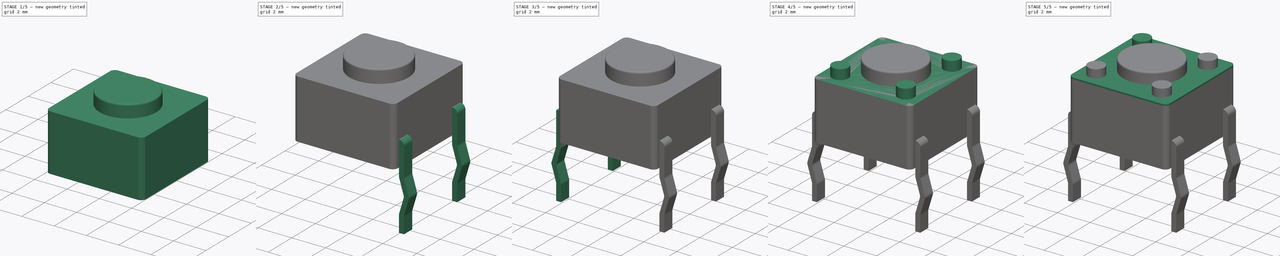
[diagram: build sequence overview — one tinted view per stage of 5, left to right]
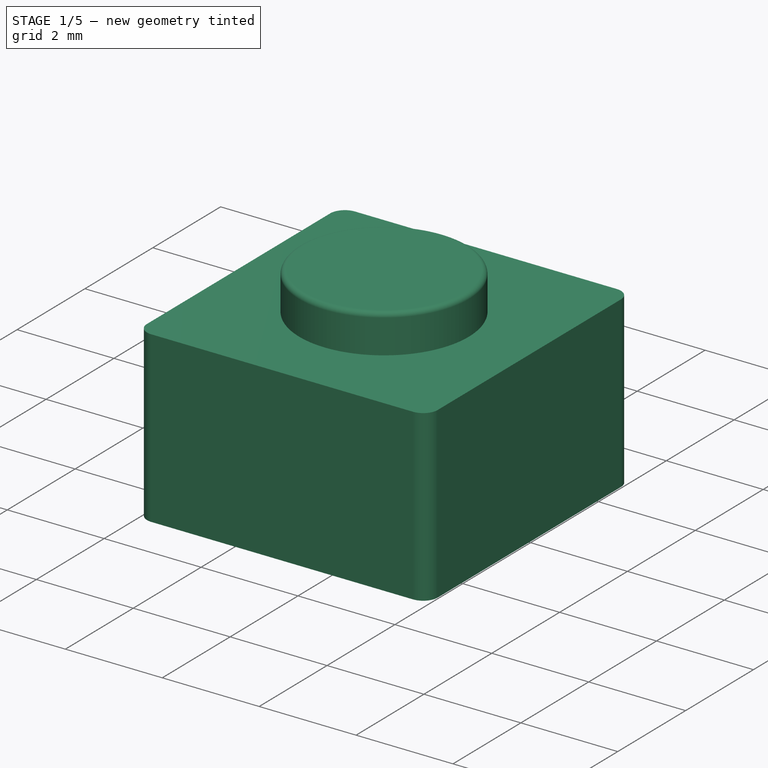
[diagram: stage 1 of 5 — iso view after this stage's code; geometry added in this stage tinted green]
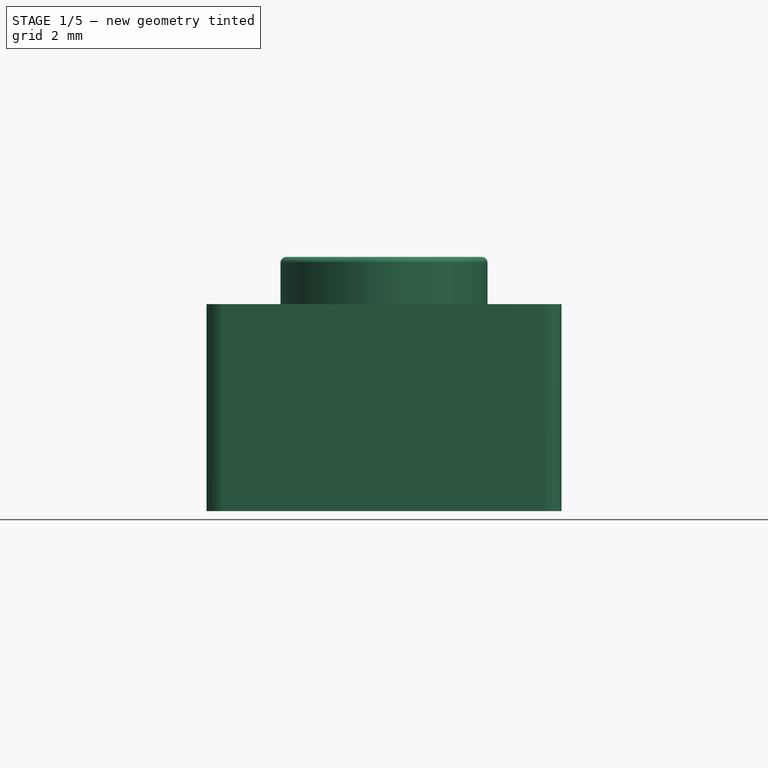
[diagram: stage 1 of 5 — front view after this stage's code; geometry added in this stage tinted green]
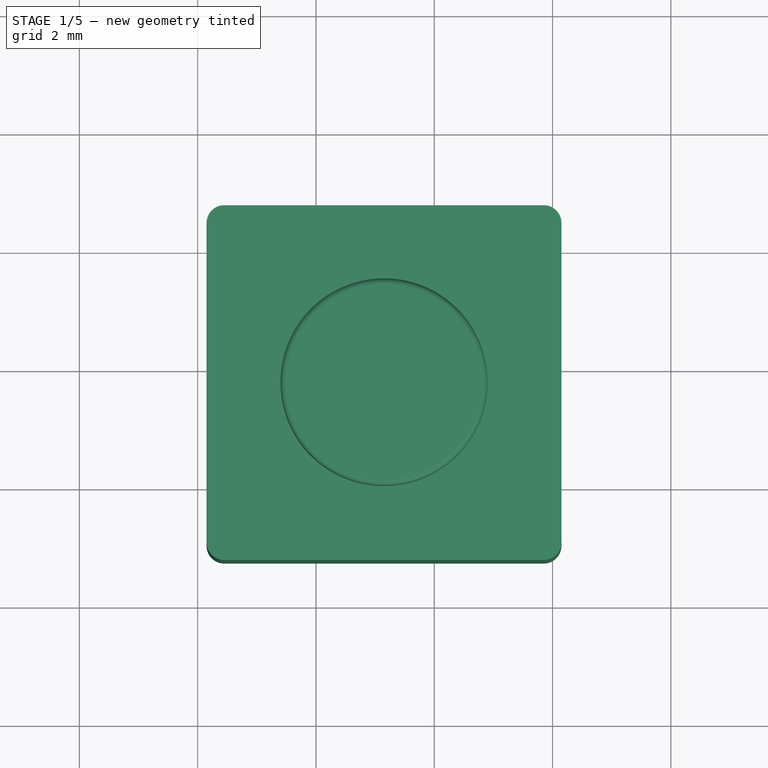
[diagram: stage 1 of 5 — top view after this stage's code; geometry added in this stage tinted green]
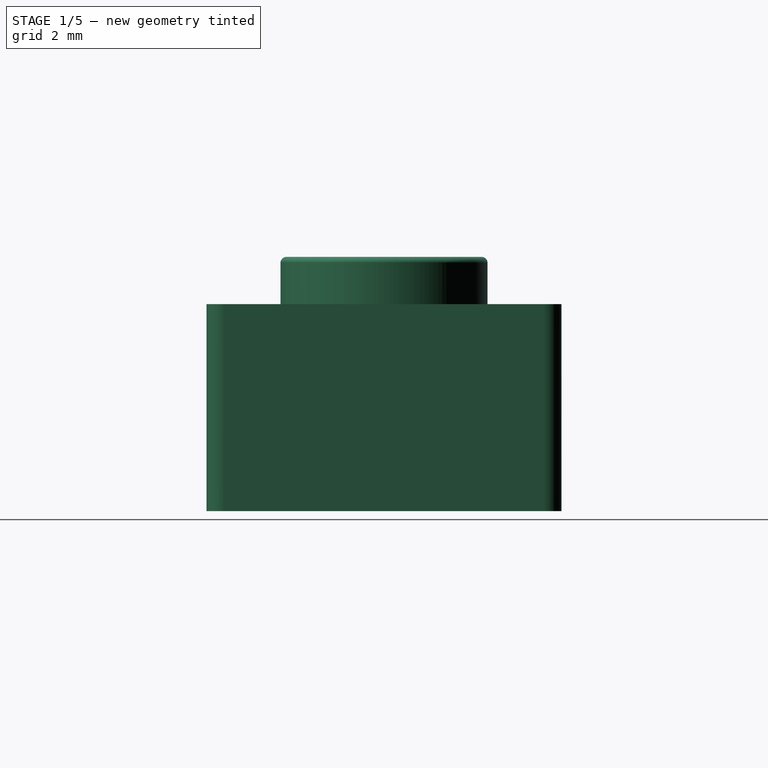
[diagram: stage 1 of 5 — right view after this stage's code; geometry added in this stage tinted green]
FCSTD DOCUMENT  (FreeCAD 0.16R6712 (Git))
Label: SW_PUSH_6mm_h4.3mm
License: All rights reserved
LicenseURL: http://en.wikipedia.org/wiki/All_rights_reserved
objects: Sketcher::SketchObject×11, PartDesign::Pad×11, PartDesign::Fillet×7, App::DocumentObjectGroup×3, Spreadsheet::Sheet×1, Part::MultiFuse×1
note: 41 computed .brp shape members not serialized (recipe doc carries the construction recipe); baked Part::Feature solids carry a one-line shape summary decoded from their .brp

FEATURE [Sketcher::SketchObject] Sketch
  expr: Constraints[10] = -1 * (6 - 4.5) / 2 - 4.5
  sketch-geometry (4):
    g0: LineSegment StartX=0.15 StartY=-5.25 StartZ=0 EndX=6.15 EndY=-5.25 EndZ=0
    g1: LineSegment StartX=6.15 StartY=-5.25 StartZ=0 EndX=6.15 EndY=0.75 EndZ=0
    g2: LineSegment StartX=6.15 StartY=0.75 StartZ=0 EndX=0.15 EndY=0.75 EndZ=0
    g3: LineSegment StartX=0.15 StartY=0.75 StartZ=0 EndX=0.15 EndY=-5.25 EndZ=0
  constraints (12):
    c: Coincident(g0,g1)
    c: Coincident(g1,g2)
    c: Coincident(g2,g3)
    c: Coincident(g3,g0)
    c: Horizontal(g0)
    c: Horizontal(g2)
    c: Vertical(g1)
    c: Vertical(g3)
    c: DistanceX(g2,g2) = 6
    c: DistanceY(g1,g1) = 6
    c: DistanceY(g-1,g0) = -5.25
    c: DistanceX(g-1,g0) = 0.15
FEATURE [PartDesign::Pad] Pad
  Length = 3.5
  Length2 = 100
  Sketch = -> Sketch
  Type = 0
FEATURE [PartDesign::Fillet] Fillet
  Base = -> Pad [Edge5,Edge2,Edge1,Edge8]
  Radius = 0.3
FEATURE [Sketcher::SketchObject] Sketch006
  ExternalGeometry = -> [Fillet]
  Placement = pos=(0,0,3.5) rot=(0,0,1;0rad)
  Support = -> Fillet [Face5]
  expr: Constraints[0] = 3.5 / 2
  sketch-geometry (1):
    g0: Circle CenterX=3.15 CenterY=-2.25 CenterZ=0 NormalX=0 NormalY=0 NormalZ=1 Radius=1.75
  constraints (3):
    c: Radius(g0) = 1.75
    c: DistanceX(g-3,g0) = 3
    c: DistanceY(g0,g-6) = 3
FEATURE [PartDesign::Pad] Pad006
  Length = 0.8
  Length2 = 100
  Sketch = -> Sketch006
  Type = 0
  expr: Length = dim.height - 3.5
FEATURE [PartDesign::Fillet] Fillet006
  Base = -> Pad006 [Edge1]
  Radius = 0.1
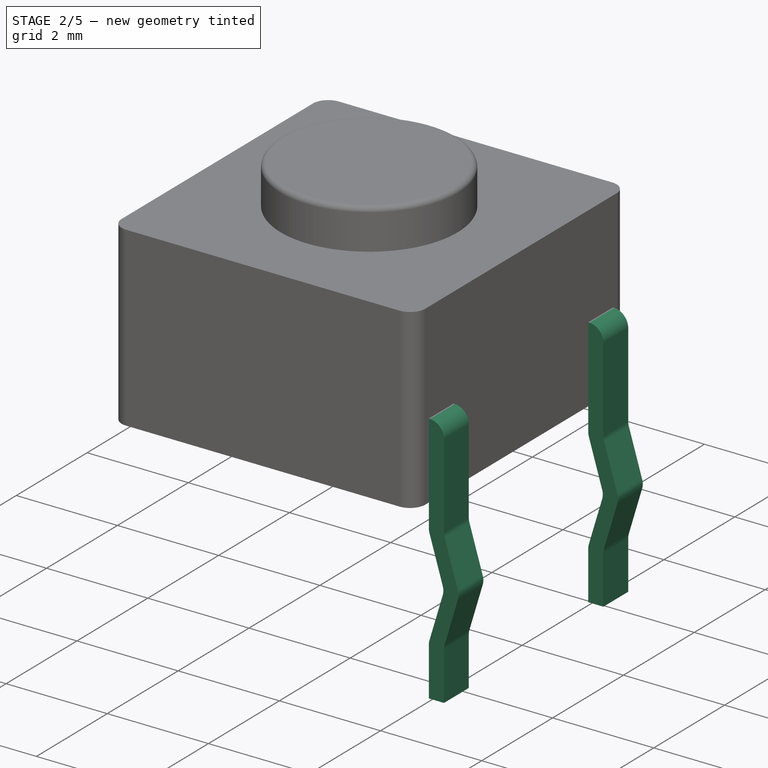
[diagram: stage 2 of 5 — iso view after this stage's code; geometry added in this stage tinted green]
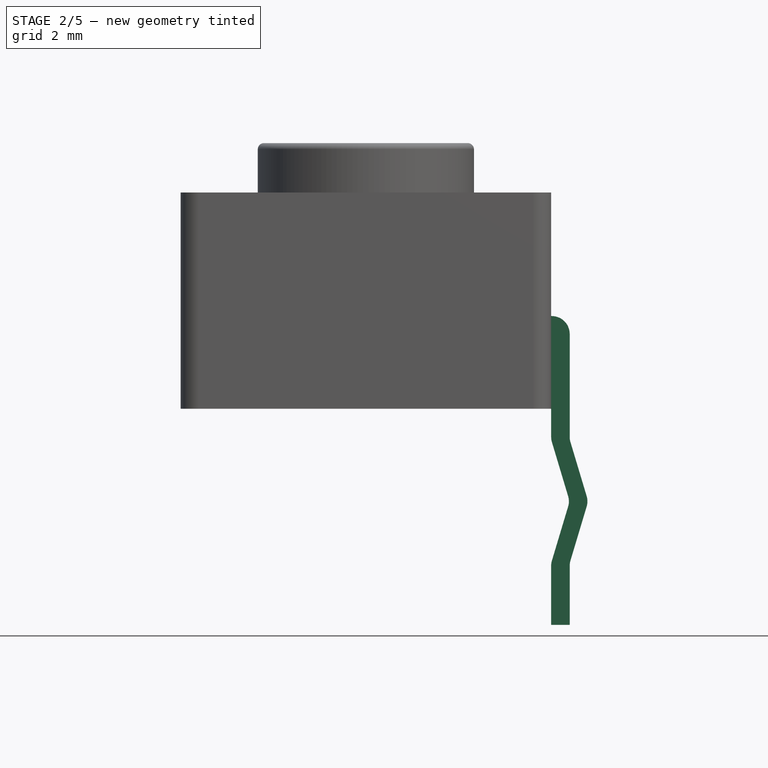
[diagram: stage 2 of 5 — front view after this stage's code; geometry added in this stage tinted green]
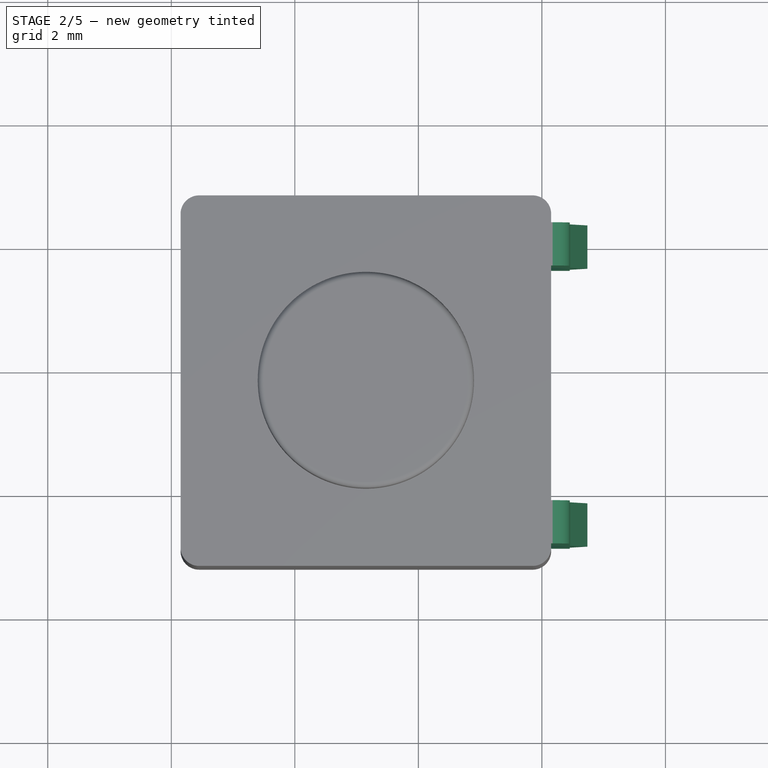
[diagram: stage 2 of 5 — top view after this stage's code; geometry added in this stage tinted green]
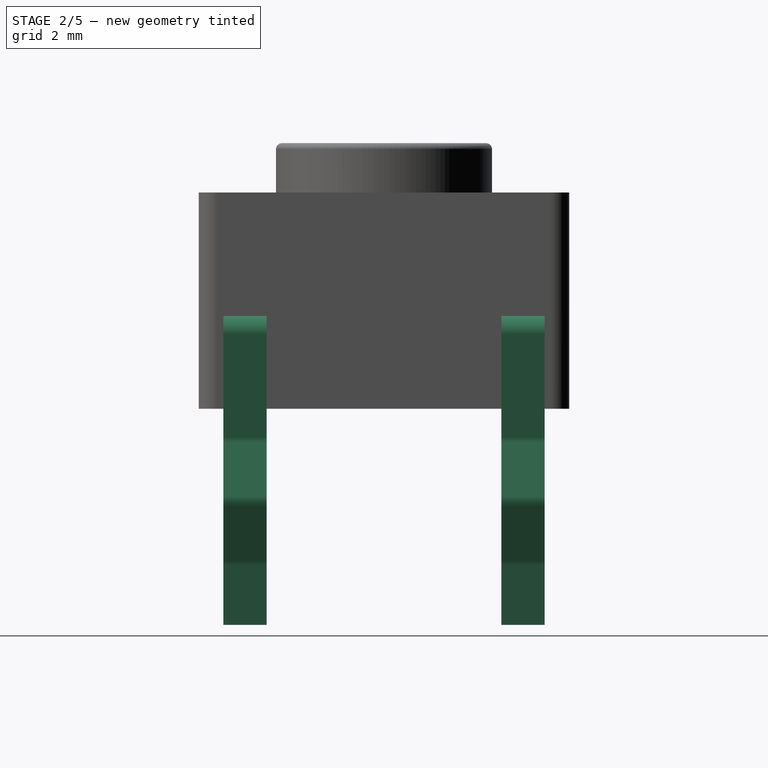
[diagram: stage 2 of 5 — right view after this stage's code; geometry added in this stage tinted green]
FEATURE [Sketcher::SketchObject] Sketch009
  Placement = pos=(0,-4.85,0) rot=(1,0,0;1.5708rad)
  expr: Placement.Base.y = -0.7 / 2 - 4.5
  sketch-geometry (10):
    g0: LineSegment StartX=6.45 StartY=1.5 StartZ=0 EndX=6.15 EndY=1.5 EndZ=0
    g1: LineSegment StartX=6.15 StartY=1.5 StartZ=0 EndX=6.15 EndY=-0.5 EndZ=0
    g2: LineSegment StartX=6.45 StartY=-0.5 StartZ=0 EndX=6.45 EndY=1.5 EndZ=0
    g3: LineSegment StartX=6.15 StartY=-2.5 StartZ=0 EndX=6.15 EndY=-3.5 EndZ=0
    g4: LineSegment StartX=6.15 StartY=-3.5 StartZ=0 EndX=6.45 EndY=-3.5 EndZ=0
    g5: LineSegment StartX=6.45 StartY=-3.5 StartZ=0 EndX=6.45 EndY=-2.5 EndZ=0
    g6: LineSegment StartX=6.45 StartY=-0.5 StartZ=0 EndX=6.75 EndY=-1.5 EndZ=0
    g7: LineSegment StartX=6.75 StartY=-1.5 StartZ=0 EndX=6.45 EndY=-2.5 EndZ=0
    g8: LineSegment StartX=6.15 StartY=-2.5 StartZ=0 EndX=6.45 EndY=-1.5 EndZ=0
    g9: LineSegment StartX=6.45 StartY=-1.5 StartZ=0 EndX=6.15 EndY=-0.5 EndZ=0
  constraints (30):
    c: Coincident(g0,g1)
    c: Coincident(g2,g0)
    c: Horizontal(g0)
    c: Vertical(g1)
    c: Vertical(g2)
    c: Coincident(g3,g4)
    c: Coincident(g4,g5)
    c: Horizontal(g4)
    c: Vertical(g3)
    c: Vertical(g5)
    c: DistanceX(g4,g4) = -0.3
    c: DistanceX(g2,g1) = -0.3
    c: DistanceX(g-1,g1) = 6.15
    c: DistanceX(g1,g3) = 0
    c: Coincident(g6,g2)
    c: Coincident(g7,g6)
    c: Coincident(g7,g5)
    c: Coincident(g8,g3)
    c: Coincident(g9,g8)
    c: Coincident(g9,g1)
    c: DistanceX(g6,g8) = -0.3
    c: DistanceY(g8,g6) = 0
    c: DistanceY(g8,g1) = 1
    c: DistanceY(g2,g1) = 0
    c: DistanceY(g5,g3) = 0
    c: DistanceY(g5,g6) = 1
    c: DistanceY(g3,g3) = 1
    c: DistanceY(g1,g-1) = 0.5
    c: DistanceX(g6,g3) = -0.6
    c: DistanceY(g2,g2) = 2
FEATURE [PartDesign::Pad] Pad009
  Length = 0.7
  Length2 = 100
  Placement = pos=(0,-4.85,0) rot=(1,0,0;1.5708rad)
  Reversed = true
  Sketch = -> Sketch009
  Type = 0
FEATURE [PartDesign::Fillet] Fillet004
  Base = -> Pad009 [Edge26,Edge1,Edge2,Edge5,Edge11,Edge14,Edge17]
  Placement = pos=(0,-4.85,0) rot=(1,0,0;1.5708rad)
  Radius = 0.29
FEATURE [Sketcher::SketchObject] Sketch010
  Placement = pos=(0,-0.35,0) rot=(1,0,0;1.5708rad)
  expr: Placement.Base.y = 4.5 - 0.7 / 2 - 4.5
  sketch-geometry (10):
    g0: LineSegment StartX=6.45 StartY=1.5 StartZ=0 EndX=6.15 EndY=1.5 EndZ=0
    g1: LineSegment StartX=6.15 StartY=1.5 StartZ=0 EndX=6.15 EndY=-0.5 EndZ=0
    g2: LineSegment StartX=6.45 StartY=-0.5 StartZ=0 EndX=6.45 EndY=1.5 EndZ=0
    g3: LineSegment StartX=6.15 StartY=-2.5 StartZ=0 EndX=6.15 EndY=-3.5 EndZ=0
    g4: LineSegment StartX=6.15 StartY=-3.5 StartZ=0 EndX=6.45 EndY=-3.5 EndZ=0
    g5: LineSegment StartX=6.45 StartY=-3.5 StartZ=0 EndX=6.45 EndY=-2.5 EndZ=0
    g6: LineSegment StartX=6.45 StartY=-0.5 StartZ=0 EndX=6.75 EndY=-1.5 EndZ=0
    g7: LineSegment StartX=6.75 StartY=-1.5 StartZ=0 EndX=6.45 EndY=-2.5 EndZ=0
    g8: LineSegment StartX=6.15 StartY=-2.5 StartZ=0 EndX=6.45 EndY=-1.5 EndZ=0
    g9: LineSegment StartX=6.45 StartY=-1.5 StartZ=0 EndX=6.15 EndY=-0.5 EndZ=0
  constraints (30):
    c: Coincident(g0,g1)
    c: Coincident(g2,g0)
    c: Horizontal(g0)
    c: Vertical(g1)
    c: Vertical(g2)
    c: Coincident(g3,g4)
    c: Coincident(g4,g5)
    c: Horizontal(g4)
    c: Vertical(g3)
    c: Vertical(g5)
    c: DistanceX(g4,g4) = -0.3
    c: DistanceX(g2,g1) = -0.3
    c: DistanceX(g-1,g1) = 6.15
    c: DistanceX(g1,g3) = 0
    c: Coincident(g6,g2)
    c: Coincident(g7,g6)
    c: Coincident(g7,g5)
    c: Coincident(g8,g3)
    c: Coincident(g9,g8)
    c: Coincident(g9,g1)
    c: DistanceX(g6,g8) = -0.3
    c: DistanceY(g8,g6) = 0
    c: DistanceY(g8,g1) = 1
    c: DistanceY(g2,g1) = 0
    c: DistanceY(g5,g3) = 0
    c: DistanceY(g5,g6) = 1
    c: DistanceY(g3,g3) = 1
    c: DistanceY(g1,g-1) = 0.5
    c: DistanceX(g6,g3) = -0.6
    c: DistanceY(g2,g2) = 2
FEATURE [PartDesign::Pad] Pad010
  Length = 0.7
  Length2 = 100
  Placement = pos=(0,-0.35,0) rot=(1,0,0;1.5708rad)
  Reversed = true
  Sketch = -> Sketch010
  Type = 0
FEATURE [PartDesign::Fillet] Fillet005
  Base = -> Pad010 [Edge26,Edge1,Edge2,Edge5,Edge11,Edge14,Edge17]
  Placement = pos=(0,-0.35,0) rot=(1,0,0;1.5708rad)
  Radius = 0.29
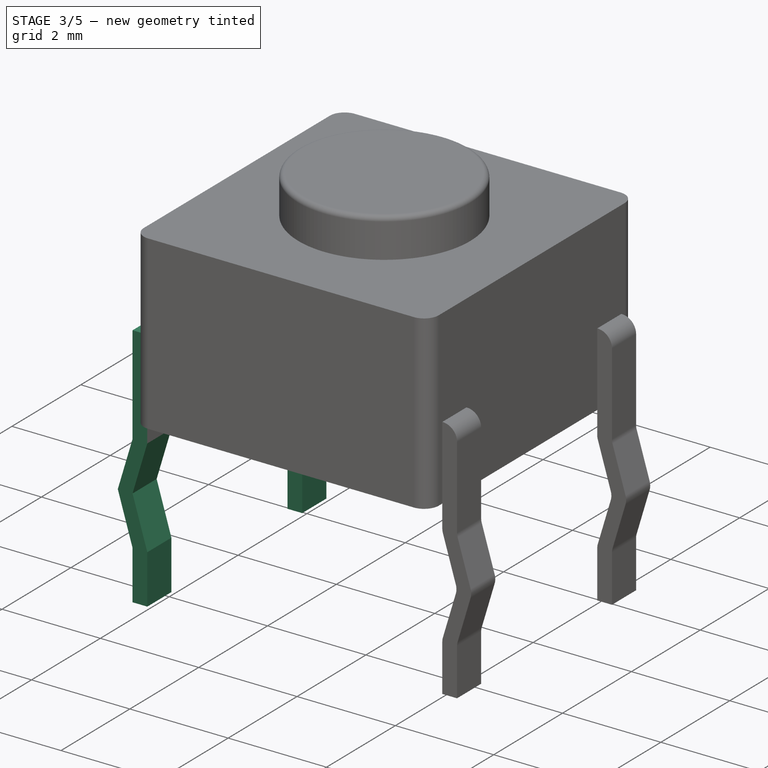
[diagram: stage 3 of 5 — iso view after this stage's code; geometry added in this stage tinted green]
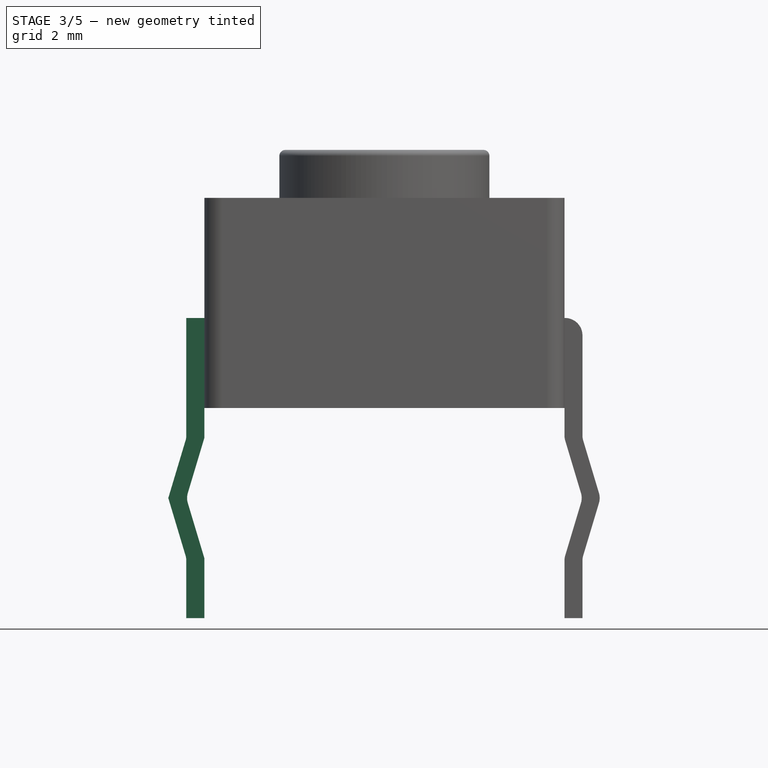
[diagram: stage 3 of 5 — front view after this stage's code; geometry added in this stage tinted green]
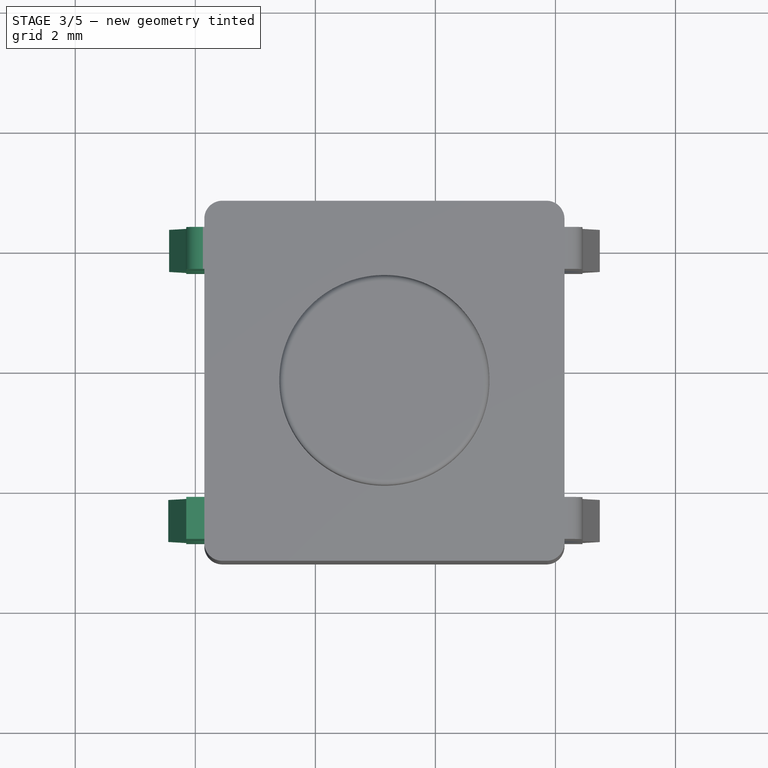
[diagram: stage 3 of 5 — top view after this stage's code; geometry added in this stage tinted green]
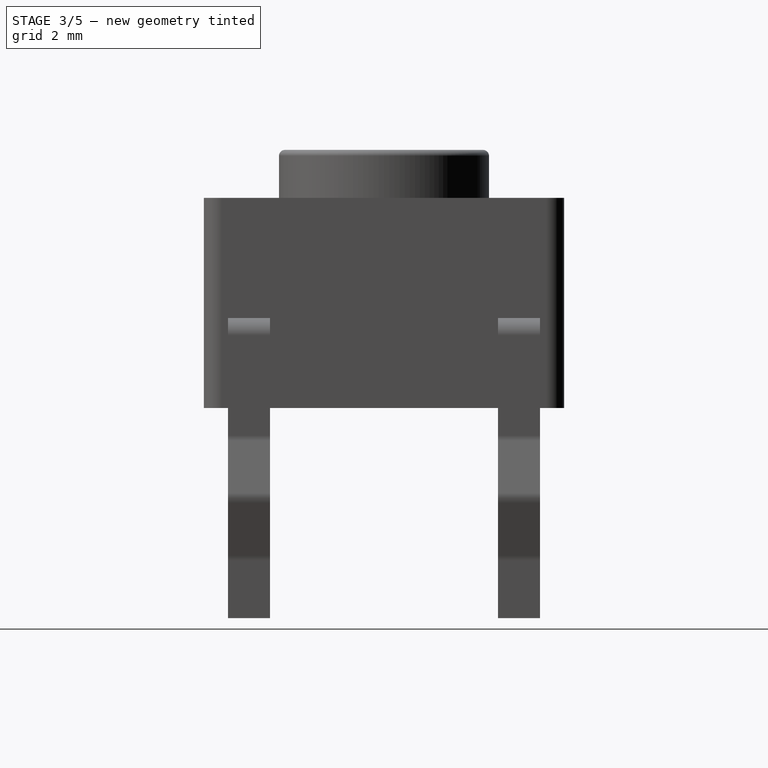
[diagram: stage 3 of 5 — right view after this stage's code; geometry added in this stage tinted green]
FEATURE [Sketcher::SketchObject] Sketch007
  Placement = pos=(0,-4.85,0) rot=(1,0,0;1.5708rad)
  expr: Placement.Base.y = -0.7 / 2 - 4.5
  sketch-geometry (10):
    g0: LineSegment StartX=-0.15 StartY=1.5 StartZ=0 EndX=0.15 EndY=1.5 EndZ=0
    g1: LineSegment StartX=0.15 StartY=1.5 StartZ=0 EndX=0.15 EndY=-0.5 EndZ=0
    g2: LineSegment StartX=-0.15 StartY=-0.5 StartZ=0 EndX=-0.15 EndY=1.5 EndZ=0
    g3: LineSegment StartX=0.15 StartY=-2.5 StartZ=0 EndX=0.15 EndY=-3.5 EndZ=0
    g4: LineSegment StartX=0.15 StartY=-3.5 StartZ=0 EndX=-0.15 EndY=-3.5 EndZ=0
    g5: LineSegment StartX=-0.15 StartY=-3.5 StartZ=0 EndX=-0.15 EndY=-2.5 EndZ=0
    g6: LineSegment StartX=-0.15 StartY=-0.5 StartZ=0 EndX=-0.45 EndY=-1.5 EndZ=0
    g7: LineSegment StartX=-0.45 StartY=-1.5 StartZ=0 EndX=-0.15 EndY=-2.5 EndZ=0
    g8: LineSegment StartX=0.15 StartY=-2.5 StartZ=0 EndX=-0.15 EndY=-1.5 EndZ=0
    g9: LineSegment StartX=-0.15 StartY=-1.5 StartZ=0 EndX=0.15 EndY=-0.5 EndZ=0
  constraints (30):
    c: Coincident(g0,g1)
    c: Coincident(g2,g0)
    c: Horizontal(g0)
    c: Vertical(g1)
    c: Vertical(g2)
    c: Coincident(g3,g4)
    c: Coincident(g4,g5)
    c: Horizontal(g4)
    c: Vertical(g3)
    c: Vertical(g5)
    c: DistanceX(g4,g4) = 0.3
    c: DistanceX(g2,g1) = 0.3
    c: DistanceX(g-1,g1) = 0.15
    c: DistanceX(g1,g3) = 0
    c: Coincident(g6,g2)
    c: Coincident(g7,g6)
    c: Coincident(g7,g5)
    c: Coincident(g8,g3)
    c: Coincident(g9,g8)
    c: Coincident(g9,g1)
    c: DistanceX(g6,g8) = 0.3
    c: DistanceY(g8,g6) = 0
    c: DistanceY(g8,g1) = 1
    c: DistanceY(g2,g1) = 0
    c: DistanceY(g5,g3) = 0
    c: DistanceY(g5,g6) = 1
    c: DistanceY(g3,g3) = 1
    c: DistanceY(g1,g-1) = 0.5
    c: DistanceX(g6,g3) = 0.6
    c: DistanceY(g2,g2) = 2
FEATURE [PartDesign::Pad] Pad007
  Length = 0.7
  Length2 = 100
  Placement = pos=(0,-4.85,0) rot=(1,0,0;1.5708rad)
  Reversed = true
  Sketch = -> Sketch007
  Type = 0
FEATURE [Sketcher::SketchObject] Sketch008
  Placement = pos=(0,-0.35,0) rot=(1,0,0;1.5708rad)
  expr: Placement.Base.y = 4.5 - 0.7 / 2 - 4.5
  sketch-geometry (10):
    g0: LineSegment StartX=-0.15 StartY=1.5 StartZ=0 EndX=0.15 EndY=1.5 EndZ=0
    g1: LineSegment StartX=0.15 StartY=1.5 StartZ=0 EndX=0.15 EndY=-0.5 EndZ=0
    g2: LineSegment StartX=-0.15 StartY=-0.5 StartZ=0 EndX=-0.15 EndY=1.5 EndZ=0
    g3: LineSegment StartX=0.15 StartY=-2.5 StartZ=0 EndX=0.15 EndY=-3.5 EndZ=0
    g4: LineSegment StartX=0.15 StartY=-3.5 StartZ=0 EndX=-0.15 EndY=-3.5 EndZ=0
    g5: LineSegment StartX=-0.15 StartY=-3.5 StartZ=0 EndX=-0.15 EndY=-2.5 EndZ=0
    g6: LineSegment StartX=-0.15 StartY=-0.5 StartZ=0 EndX=-0.45 EndY=-1.5 EndZ=0
    g7: LineSegment StartX=-0.45 StartY=-1.5 StartZ=0 EndX=-0.15 EndY=-2.5 EndZ=0
    g8: LineSegment StartX=0.15 StartY=-2.5 StartZ=0 EndX=-0.15 EndY=-1.5 EndZ=0
    g9: LineSegment StartX=-0.15 StartY=-1.5 StartZ=0 EndX=0.15 EndY=-0.5 EndZ=0
  constraints (30):
    c: Coincident(g0,g1)
    c: Coincident(g2,g0)
    c: Horizontal(g0)
    c: Vertical(g1)
    c: Vertical(g2)
    c: Coincident(g3,g4)
    c: Coincident(g4,g5)
    c: Horizontal(g4)
    c: Vertical(g3)
    c: Vertical(g5)
    c: DistanceX(g4,g4) = 0.3
    c: DistanceX(g2,g1) = 0.3
    c: DistanceX(g-1,g1) = 0.15
    c: DistanceX(g1,g3) = 0
    c: Coincident(g6,g2)
    c: Coincident(g7,g6)
    c: Coincident(g7,g5)
    c: Coincident(g8,g3)
    c: Coincident(g9,g8)
    c: Coincident(g9,g1)
    c: DistanceX(g6,g8) = 0.3
    c: DistanceY(g8,g6) = 0
    c: DistanceY(g8,g1) = 1
    c: DistanceY(g2,g1) = 0
    c: DistanceY(g5,g3) = 0
    c: DistanceY(g5,g6) = 1
    c: DistanceY(g3,g3) = 1
    c: DistanceY(g1,g-1) = 0.5
    c: DistanceX(g6,g3) = 0.6
    c: DistanceY(g2,g2) = 2
FEATURE [PartDesign::Pad] Pad008
  Length = 0.7
  Length2 = 100
  Placement = pos=(0,-0.35,0) rot=(1,0,0;1.5708rad)
  Reversed = true
  Sketch = -> Sketch008
  Type = 0
FEATURE [PartDesign::Fillet] Fillet003
  Base = -> Pad008 [Edge26,Edge1,Edge2,Edge5,Edge11,Edge14,Edge17]
  Placement = pos=(0,-0.35,0) rot=(1,0,0;1.5708rad)
  Radius = 0.29
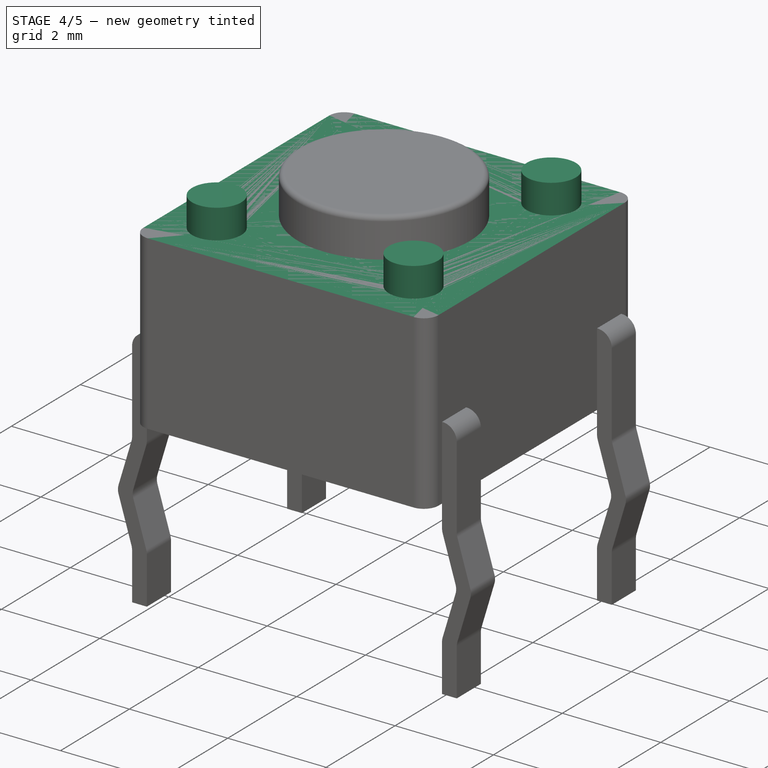
[diagram: stage 4 of 5 — iso view after this stage's code; geometry added in this stage tinted green]
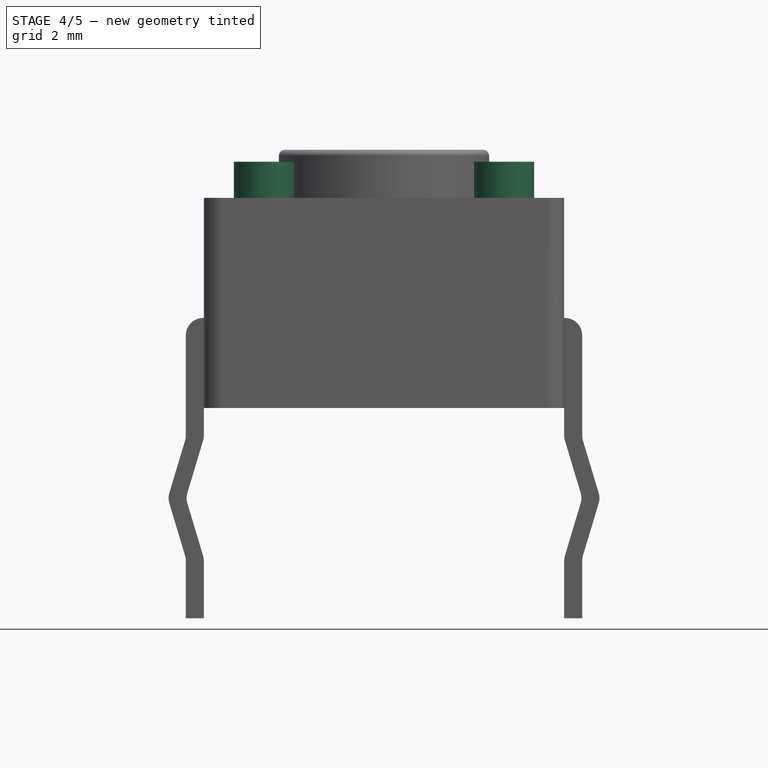
[diagram: stage 4 of 5 — front view after this stage's code; geometry added in this stage tinted green]
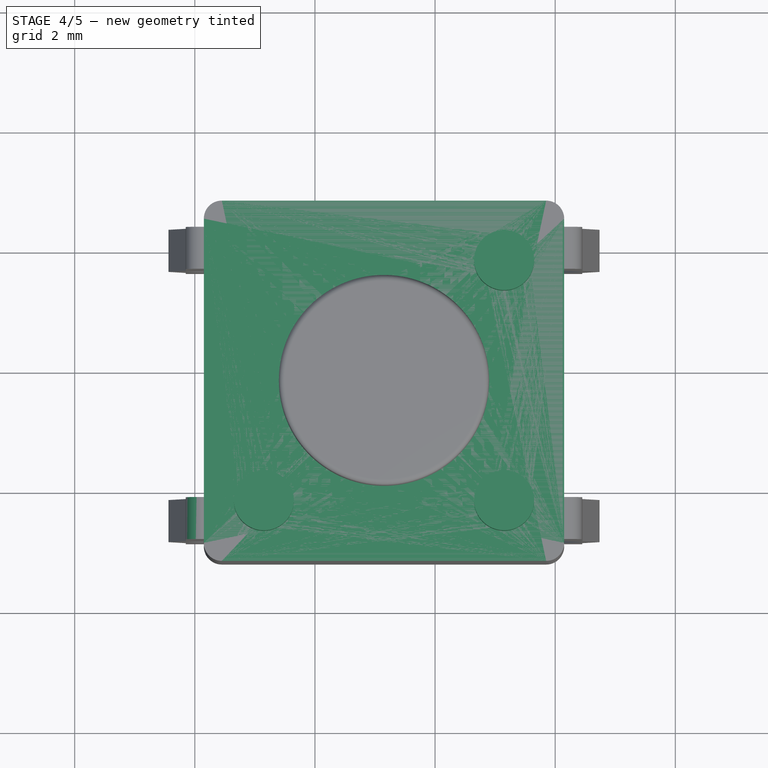
[diagram: stage 4 of 5 — top view after this stage's code; geometry added in this stage tinted green]
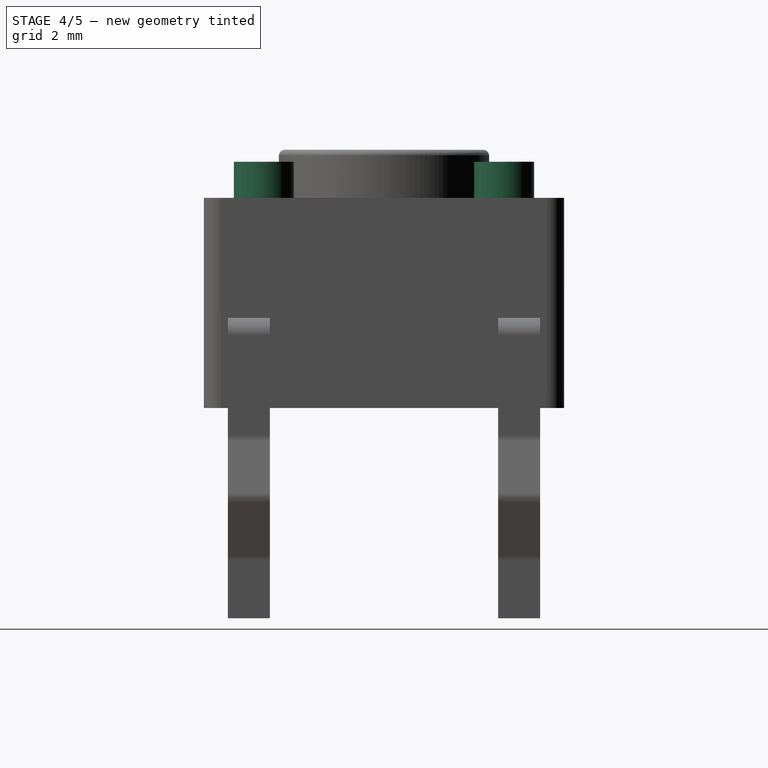
[diagram: stage 4 of 5 — right view after this stage's code; geometry added in this stage tinted green]
FEATURE [PartDesign::Pad] Pad003
  Length = 0.6
  Length2 = 100
  Sketch = -> Sketch004
  Type = 0
FEATURE [PartDesign::Pad] Pad004
  Length = 0.6
  Length2 = 100
  Sketch = -> Sketch003
  Type = 0
FEATURE [PartDesign::Pad] Pad005
  Length = 0.6
  Length2 = 100
  Sketch = -> Sketch002
  Type = 0
FEATURE [PartDesign::Fillet] Fillet002
  Base = -> Pad007 [Edge26,Edge1,Edge2,Edge5,Edge11,Edge14,Edge17]
  Placement = pos=(0,-4.85,0) rot=(1,0,0;1.5708rad)
  Radius = 0.29
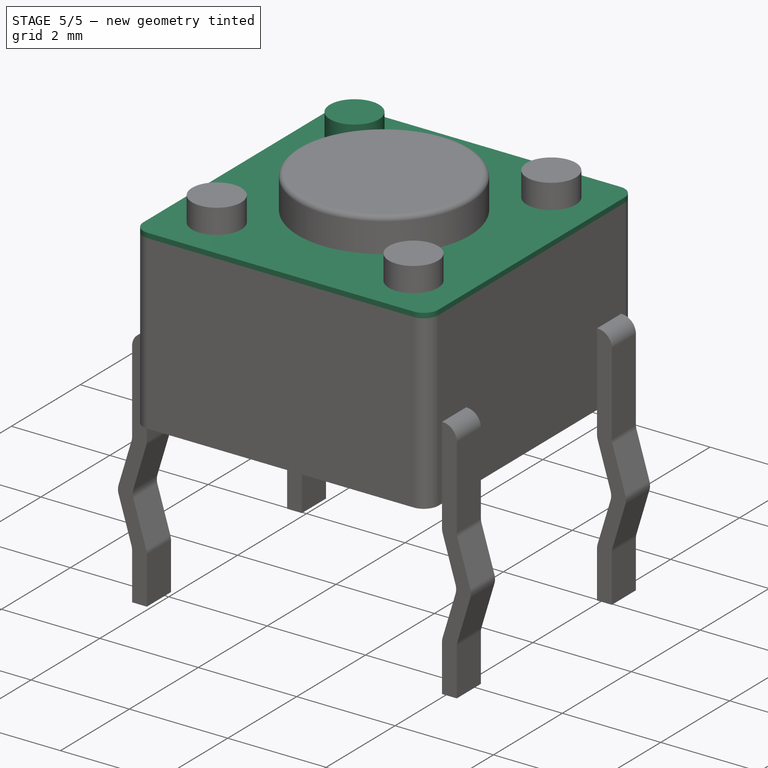
[diagram: stage 5 of 5 — iso view after this stage's code; geometry added in this stage tinted green]
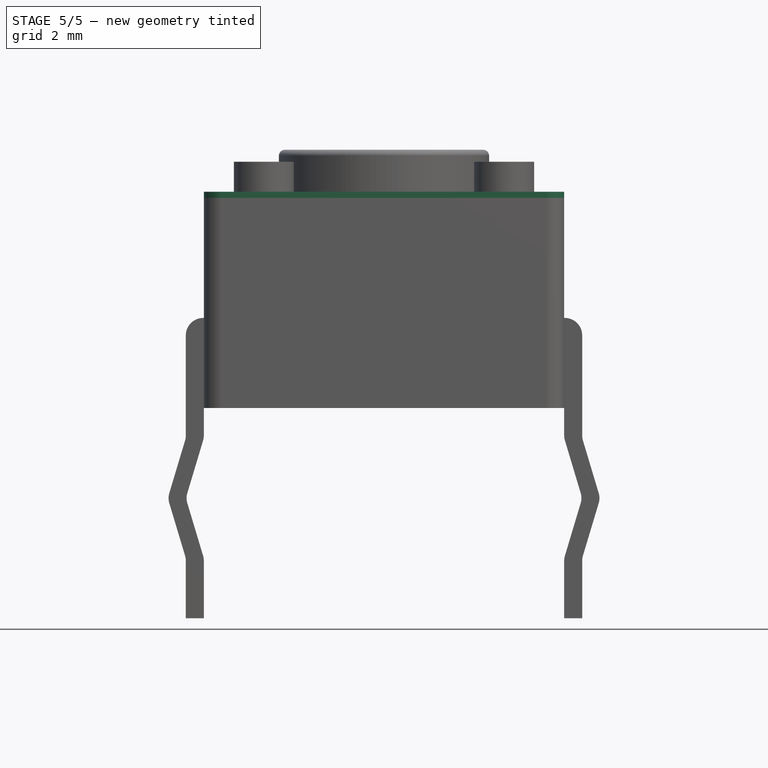
[diagram: stage 5 of 5 — front view after this stage's code; geometry added in this stage tinted green]
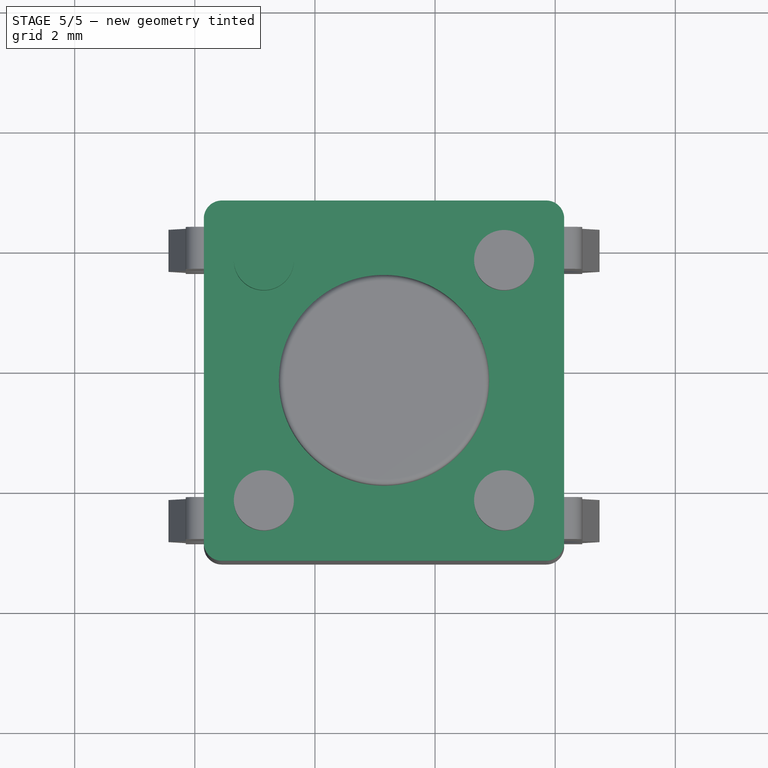
[diagram: stage 5 of 5 — top view after this stage's code; geometry added in this stage tinted green]
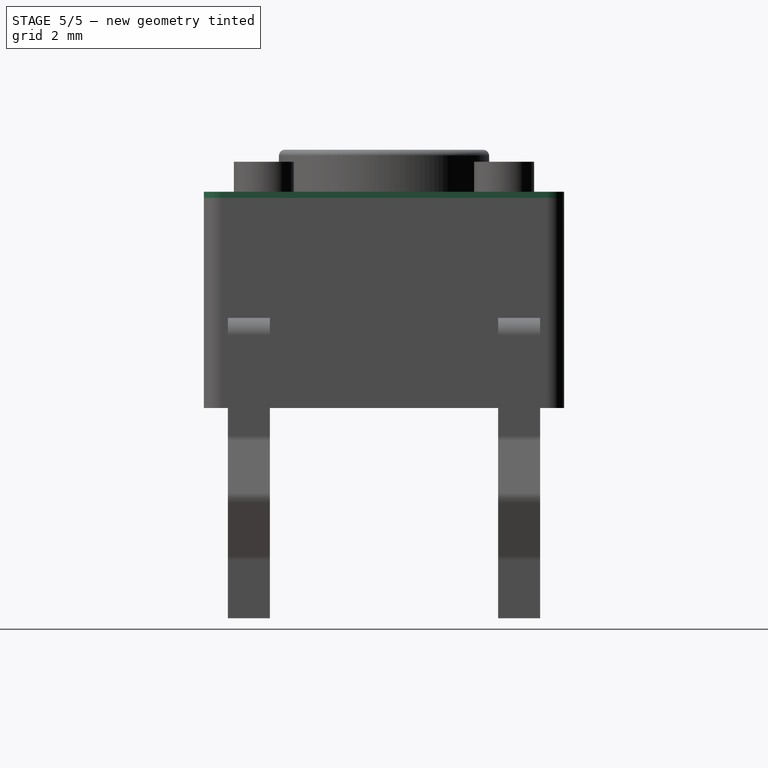
[diagram: stage 5 of 5 — right view after this stage's code; geometry added in this stage tinted green]
FEATURE [Sketcher::SketchObject] Sketch001
  Placement = pos=(0,0,3.5) rot=(0,0,1;0rad)
  expr: Constraints[10] = -1 * (6 - 4.5) / 2 - 4.5
  sketch-geometry (4):
    g0: LineSegment StartX=0.15 StartY=-5.25 StartZ=0 EndX=6.15 EndY=-5.25 EndZ=0
    g1: LineSegment StartX=6.15 StartY=-5.25 StartZ=0 EndX=6.15 EndY=0.75 EndZ=0
    g2: LineSegment StartX=6.15 StartY=0.75 StartZ=0 EndX=0.15 EndY=0.75 EndZ=0
    g3: LineSegment StartX=0.15 StartY=0.75 StartZ=0 EndX=0.15 EndY=-5.25 EndZ=0
  constraints (12):
    c: Coincident(g0,g1)
    c: Coincident(g1,g2)
    c: Coincident(g2,g3)
    c: Coincident(g3,g0)
    c: Horizontal(g0)
    c: Horizontal(g2)
    c: Vertical(g1)
    c: Vertical(g3)
    c: DistanceX(g2,g2) = 6
    c: DistanceY(g1,g1) = 6
    c: DistanceY(g-1,g0) = -5.25
    c: DistanceX(g-1,g0) = 0.15
FEATURE [PartDesign::Pad] Pad001
  Length = 0.1
  Length2 = 100
  Placement = pos=(0,0,3.5) rot=(0,0,1;0rad)
  Sketch = -> Sketch001
  Type = 0
FEATURE [PartDesign::Fillet] Fillet001
  Base = -> Pad001 [Edge2,Edge1,Edge5,Edge8]
  Placement = pos=(0,0,3.5) rot=(0,0,1;0rad)
  Radius = 0.3
FEATURE [Sketcher::SketchObject] Sketch002
  ExternalGeometry = -> [Fillet]
  Placement = pos=(0,0,3.5) rot=(0,0,1;0rad)
  Support = -> Fillet [Face5]
  sketch-geometry (1):
    g0: Circle CenterX=1.15 CenterY=-4.25 CenterZ=0 NormalX=0 NormalY=0 NormalZ=1 Radius=0.5
  constraints (3):
    c: Radius(g0) = 0.5
    c: DistanceY(g-4,g0) = 1
    c: DistanceX(g-3,g0) = 1
FEATURE [Sketcher::SketchObject] Sketch003
  ExternalGeometry = -> [Fillet]
  Placement = pos=(0,0,3.5) rot=(0,0,1;0rad)
  Support = -> Fillet [Face5]
  sketch-geometry (1):
    g0: Circle CenterX=5.15 CenterY=-4.25 CenterZ=0 NormalX=0 NormalY=0 NormalZ=1 Radius=0.5
  constraints (3):
    c: Radius(g0) = 0.5
    c: DistanceY(g-4,g0) = 1
    c: DistanceX(g0,g-5) = 1
FEATURE [Sketcher::SketchObject] Sketch004
  ExternalGeometry = -> [Fillet]
  Placement = pos=(0,0,3.5) rot=(0,0,1;0rad)
  Support = -> Fillet [Face5]
  sketch-geometry (1):
    g0: Circle CenterX=5.15 CenterY=-0.25 CenterZ=0 NormalX=0 NormalY=0 NormalZ=1 Radius=0.5
  constraints (3):
    c: Radius(g0) = 0.5
    c: DistanceX(g0,g-5) = 1
    c: DistanceY(g0,g-6) = 1
FEATURE [Sketcher::SketchObject] Sketch005
  ExternalGeometry = -> [Fillet]
  Placement = pos=(0,0,3.5) rot=(0,0,1;0rad)
  Support = -> Fillet [Face5]
  sketch-geometry (1):
    g0: Circle CenterX=1.15 CenterY=-0.25 CenterZ=0 NormalX=0 NormalY=0 NormalZ=1 Radius=0.5
  constraints (3):
    c: Radius(g0) = 0.5
    c: DistanceX(g-3,g0) = 1
    c: DistanceY(g0,g-6) = 1
FEATURE [PartDesign::Pad] Pad002
  Length = 0.6
  Length2 = 100
  Sketch = -> Sketch005
  Type = 0
FEATURE [Spreadsheet::Sheet] Spreadsheet  label="dim"
  cells = A1=height; B1(height)=4.3; C1=mm
FEATURE [App::DocumentObjectGroup] Group001  label="metal"
  Group = -> [Fillet002,Fillet003,Fillet004,Fillet005,Fillet001]
FEATURE [App::DocumentObjectGroup] Group002  label="plastic"
  Group = -> [Pad003,Pad004,Pad005,Pad002]
FEATURE [App::DocumentObjectGroup] Group  label="e"
  Group = -> [Spreadsheet,Group001,Group002,Fillet006]
FEATURE [Part::MultiFuse] Fillet002_mp_cp  label="SW_PUSH_6mm_h4.3mm"
  Shapes = -> [Fillet002,Fillet001,Fillet003,Fillet004,Fillet005,Pad003,Pad004,Pad002,Pad005,Fillet006]
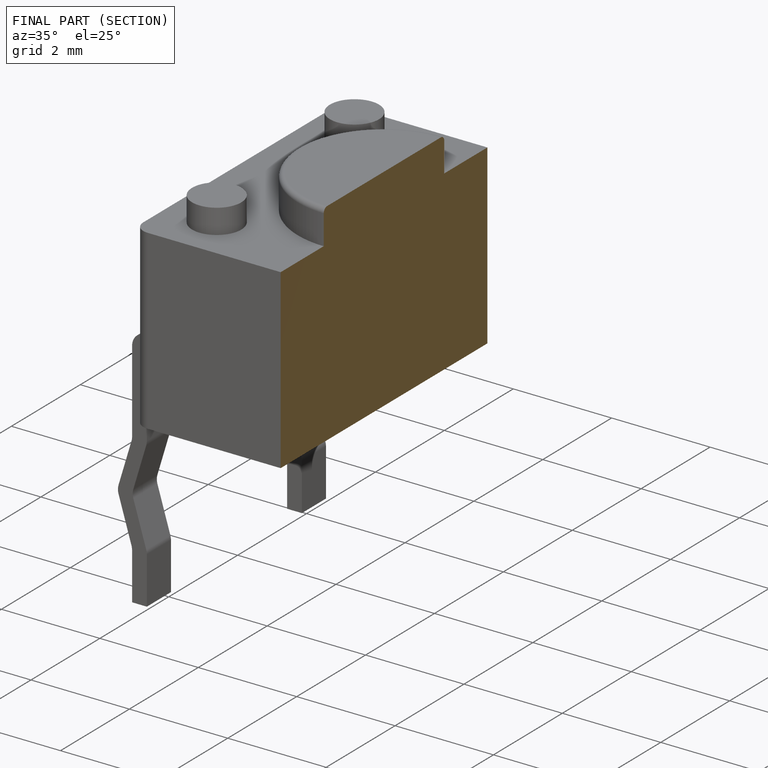
[diagram: finished part — half-section view (interior)]
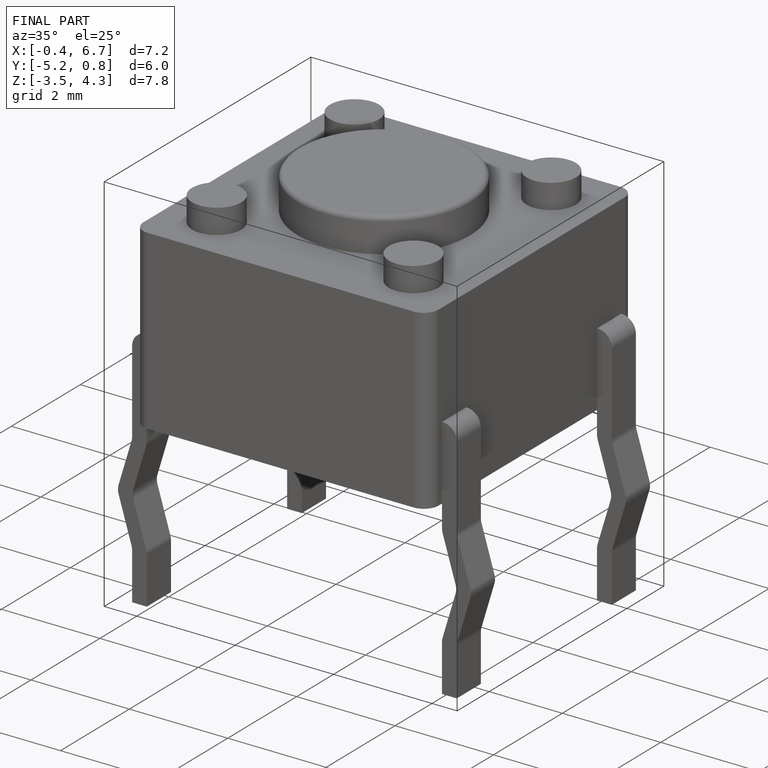
[diagram: finished part — iso view with bounding-box wireframe]
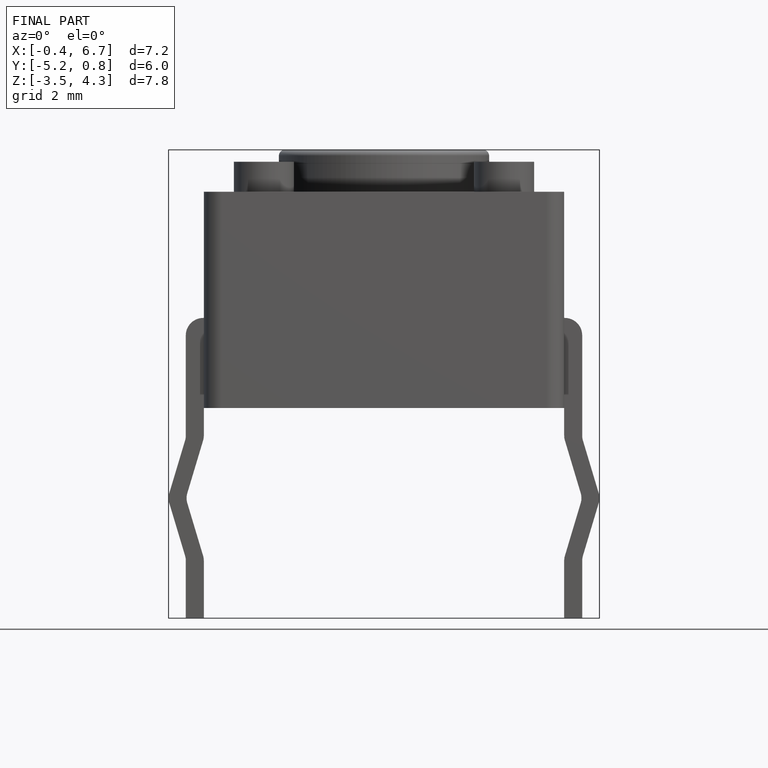
[diagram: finished part — front view with bounding-box wireframe]
